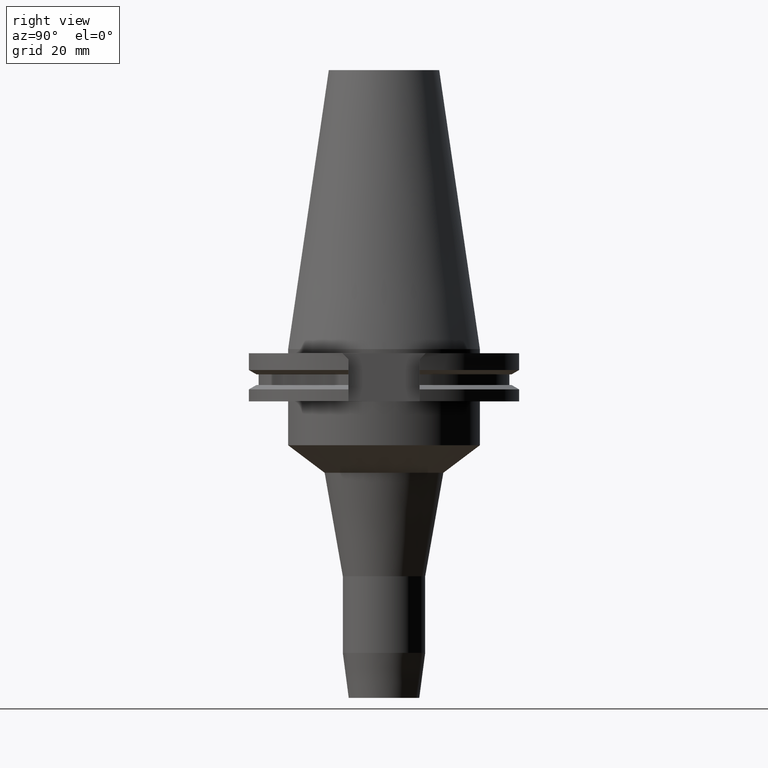
[diagram: clean part render]
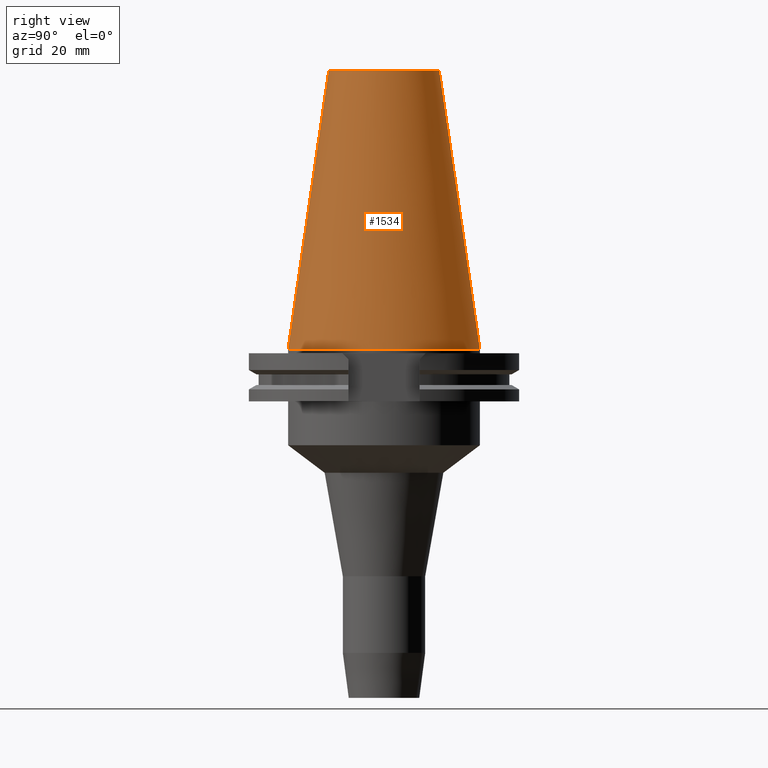
[diagram: same view with one face highlighted and labeled with its STEP entity id]
A machine part, right view. The second image highlights one B-rep face of the part: STEP entity #1534.
In plain terms, the highlighted conical surface has half-angle 8.297 deg.
Its self-contained STEP definition (entity closure, byte-faithful):
#17=DIRECTION('',(0.E0,-1.443069799457E-1,-9.895329683942E-1));
#18=VECTOR('',#17,1.026746993229E2);
#19=CARTESIAN_POINT('',(0.E0,-2.010832422387E1,1.016E2));
#20=LINE('',#19,#18);
#33=DIRECTION('',(0.E0,1.443069799457E-1,-9.895329683942E-1));
#34=VECTOR('',#33,1.026746993229E2);
#35=CARTESIAN_POINT('',(0.E0,2.010832422387E1,1.016E2));
#36=LINE('',#35,#34);
#40=CARTESIAN_POINT('',(0.E0,0.E0,8.242295734817E-13));
#41=DIRECTION('',(0.E0,0.E0,-1.E0));
#42=DIRECTION('',(0.E0,1.E0,0.E0));
#43=AXIS2_PLACEMENT_3D('',#40,#41,#42);
#1264=CARTESIAN_POINT('',(0.E0,0.E0,1.016E2));
#1265=DIRECTION('',(0.E0,0.E0,-1.E0));
#1266=DIRECTION('',(0.E0,1.E0,0.E0));
#1267=AXIS2_PLACEMENT_3D('',#1264,#1265,#1266);
#1288=CARTESIAN_POINT('',(0.E0,2.010832422387E1,1.016E2));
#1289=CARTESIAN_POINT('',(0.E0,3.4925E1,5.542233338929E-13));
#1290=VERTEX_POINT('',#1288);
#1291=VERTEX_POINT('',#1289);
#1292=CARTESIAN_POINT('',(0.E0,-2.010832422388E1,1.016E2));
#1293=VERTEX_POINT('',#1292);
#1294=CARTESIAN_POINT('',(0.E0,-3.4925E1,5.542233338929E-13));
#1295=VERTEX_POINT('',#1294);
#1521=CARTESIAN_POINT('',(0.E0,0.E0,5.08E1));
#1522=DIRECTION('',(0.E0,0.E0,-1.E0));
#1523=DIRECTION('',(0.E0,-1.E0,0.E0));
#1524=AXIS2_PLACEMENT_3D('',#1521,#1522,#1523);
#1525=CONICAL_SURFACE('',#1524,2.751666211194E1,8.29715E0);
#1526=ORIENTED_EDGE('',*,*,#1510,.T.);
#1528=ORIENTED_EDGE('',*,*,#1527,.T.);
#1529=ORIENTED_EDGE('',*,*,#1514,.F.);
#1531=ORIENTED_EDGE('',*,*,#1530,.F.);
#1532=EDGE_LOOP('',(#1526,#1528,#1529,#1531));
#1533=FACE_OUTER_BOUND('',#1532,.F.);
#44=CIRCLE('',#43,3.4925E1);
#1268=CIRCLE('',#1267,2.010832422388E1);
#1510=EDGE_CURVE('',#1290,#1291,#36,.T.);
#1514=EDGE_CURVE('',#1293,#1295,#20,.T.);
#1527=EDGE_CURVE('',#1291,#1295,#44,.T.);
#1530=EDGE_CURVE('',#1290,#1293,#1268,.T.);
#1534=ADVANCED_FACE('',(#1533),#1525,.T.);